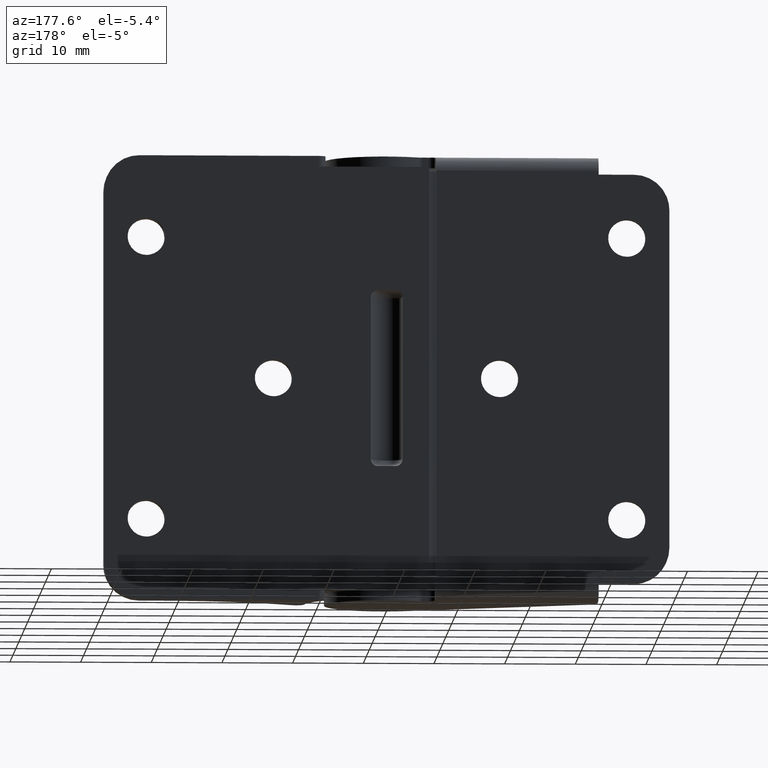
[diagram: clean part render]
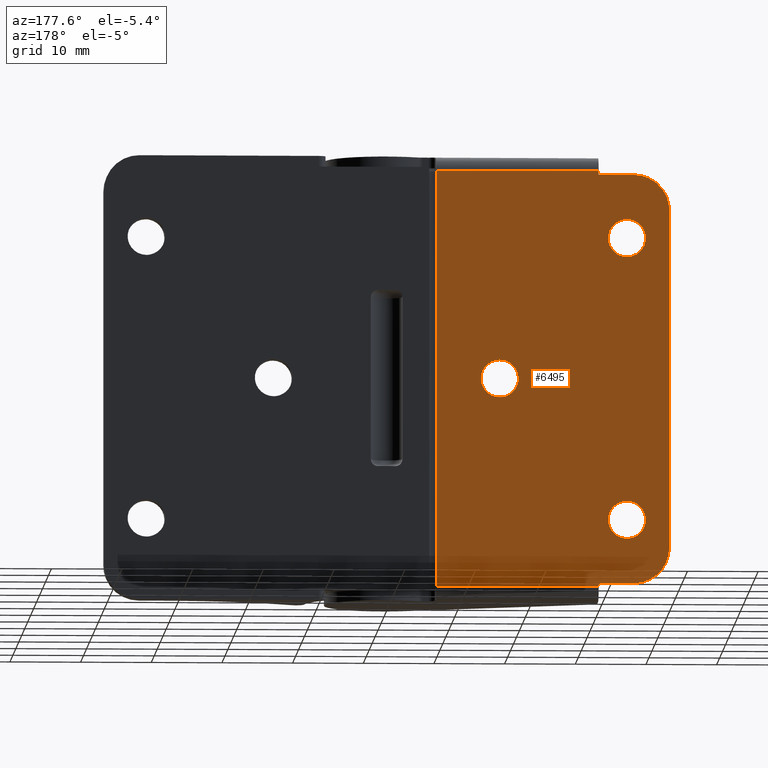
[diagram: same view with one face highlighted and labeled with its STEP entity id]
A machine part, auxiliary view. The second image highlights one B-rep face of the part: STEP entity #6495.
In plain terms, the highlighted face is a freeform B-spline surface patch.
Its self-contained STEP definition (entity closure, byte-faithful):
#4471=CARTESIAN_POINT('',(-34.000007999999902,9.0,54.149999999999999));
#4472=VERTEX_POINT('',#4471);
#4473=CARTESIAN_POINT('',(-36.641838934385788,9.0,51.707916603766350));
#4474=VERTEX_POINT('',#4473);
#4475=CARTESIAN_POINT('',(-34.000007999999902,9.0,54.149999999999999));
#4476=CARTESIAN_POINT('',(-36.449642802731248,9.000000000000002,54.149999999999999));
#4477=CARTESIAN_POINT('',(-36.641838934385788,9.0,51.707916603766350));
#4485=(BOUNDED_CURVE()B_SPLINE_CURVE(2,(#4475,#4476,#4477),.UNSPECIFIED.,.F.,.U.)B_SPLINE_CURVE_WITH_KNOTS((3,3),(0.0,0.236331300621403),.UNSPECIFIED.)CURVE()GEOMETRIC_REPRESENTATION_ITEM()RATIONAL_B_SPLINE_CURVE((1.0,0.723120658618510,0.969723356148101))REPRESENTATION_ITEM(''));
#4486=EDGE_CURVE('',#4472,#4474,#4485,.T.);
#4488=CARTESIAN_POINT('',(-31.358177065614001,9.0,51.292083396233650));
#4489=VERTEX_POINT('',#4488);
#4490=CARTESIAN_POINT('',(-31.358177065614001,9.000000000000002,51.292083396233650));
#4491=CARTESIAN_POINT('',(-31.350007999999892,9.0,51.395881216341706));
#4492=CARTESIAN_POINT('',(-31.350007999999900,9.0,51.500000000000000));
#4493=CARTESIAN_POINT('',(-31.350007999999892,9.000000000000002,54.149999999999984));
#4494=CARTESIAN_POINT('',(-34.000007999999902,9.0,54.149999999999999));
#4502=(BOUNDED_CURVE()B_SPLINE_CURVE(2,(#4490,#4491,#4492,#4493,#4494),.UNSPECIFIED.,.F.,.U.)B_SPLINE_CURVE_WITH_KNOTS((3,2,3),(0.736331300621403,0.750000000000000,1.0),.UNSPECIFIED.)CURVE()GEOMETRIC_REPRESENTATION_ITEM()RATIONAL_B_SPLINE_CURVE((0.969723356148100,0.983986122568038,1.0,0.707106781186548,1.0))REPRESENTATION_ITEM(''));
#4503=EDGE_CURVE('',#4489,#4472,#4502,.T.);
#4570=CARTESIAN_POINT('',(-34.000007999999902,9.0,48.849999999999987));
#4571=VERTEX_POINT('',#4570);
#4572=CARTESIAN_POINT('',(-36.641838934385788,9.000000000000002,51.707916603766343));
#4573=CARTESIAN_POINT('',(-36.650007999999907,9.0,51.604118783658294));
#4574=CARTESIAN_POINT('',(-36.650007999999893,9.0,51.500000000000000));
#4575=CARTESIAN_POINT('',(-36.650007999999893,9.000000000000002,48.849999999999980));
#4576=CARTESIAN_POINT('',(-34.000007999999902,9.0,48.849999999999987));
#4584=(BOUNDED_CURVE()B_SPLINE_CURVE(2,(#4572,#4573,#4574,#4575,#4576),.UNSPECIFIED.,.F.,.U.)B_SPLINE_CURVE_WITH_KNOTS((3,2,3),(0.236331300621403,0.250000000000000,0.500000000000000),.UNSPECIFIED.)CURVE()GEOMETRIC_REPRESENTATION_ITEM()RATIONAL_B_SPLINE_CURVE((0.969723356148100,0.983986122568038,1.0,0.707106781186548,1.0))REPRESENTATION_ITEM(''));
#4585=EDGE_CURVE('',#4474,#4571,#4584,.T.);
#4619=CARTESIAN_POINT('',(-34.000007999999902,9.0,48.849999999999987));
#4620=CARTESIAN_POINT('',(-31.550373197268531,9.0,48.850000000000001));
#4621=CARTESIAN_POINT('',(-31.358177065613997,9.0,51.292083396233650));
#4629=(BOUNDED_CURVE()B_SPLINE_CURVE(2,(#4619,#4620,#4621),.UNSPECIFIED.,.F.,.U.)B_SPLINE_CURVE_WITH_KNOTS((3,3),(0.500000000000000,0.736331300621404),.UNSPECIFIED.)CURVE()GEOMETRIC_REPRESENTATION_ITEM()RATIONAL_B_SPLINE_CURVE((1.0,0.723120658618509,0.969723356148102))REPRESENTATION_ITEM(''));
#4630=EDGE_CURVE('',#4571,#4489,#4629,.T.);
#4653=CARTESIAN_POINT('',(-16.000014999999799,9.0,34.149999999999999));
#4654=VERTEX_POINT('',#4653);
#4655=CARTESIAN_POINT('',(-18.641845934385699,9.0,31.707916603766350));
#4656=VERTEX_POINT('',#4655);
#4657=CARTESIAN_POINT('',(-16.000014999999799,9.0,34.149999999999999));
#4658=CARTESIAN_POINT('',(-18.449649802731162,9.0,34.150000000000013));
#4659=CARTESIAN_POINT('',(-18.641845934385696,9.0,31.707916603766350));
#4667=(BOUNDED_CURVE()B_SPLINE_CURVE(2,(#4657,#4658,#4659),.UNSPECIFIED.,.F.,.U.)B_SPLINE_CURVE_WITH_KNOTS((3,3),(0.0,0.236331300621404),.UNSPECIFIED.)CURVE()GEOMETRIC_REPRESENTATION_ITEM()RATIONAL_B_SPLINE_CURVE((1.0,0.723120658618510,0.969723356148101))REPRESENTATION_ITEM(''));
#4668=EDGE_CURVE('',#4654,#4656,#4667,.T.);
#4670=CARTESIAN_POINT('',(-13.358184065613900,9.0,31.292083396233650));
#4671=VERTEX_POINT('',#4670);
#4672=CARTESIAN_POINT('',(-13.358184065613905,9.0,31.292083396233654));
#4673=CARTESIAN_POINT('',(-13.350014999999793,9.0,31.395881216341714));
#4674=CARTESIAN_POINT('',(-13.350014999999800,9.0,31.500000000000000));
#4675=CARTESIAN_POINT('',(-13.350014999999800,9.000000000000002,34.149999999999999));
#4676=CARTESIAN_POINT('',(-16.000014999999799,9.0,34.149999999999999));
#4684=(BOUNDED_CURVE()B_SPLINE_CURVE(2,(#4672,#4673,#4674,#4675,#4676),.UNSPECIFIED.,.F.,.U.)B_SPLINE_CURVE_WITH_KNOTS((3,2,3),(0.736331300621404,0.750000000000000,1.0),.UNSPECIFIED.)CURVE()GEOMETRIC_REPRESENTATION_ITEM()RATIONAL_B_SPLINE_CURVE((0.969723356148101,0.983986122568038,1.0,0.707106781186548,1.0))REPRESENTATION_ITEM(''));
#4685=EDGE_CURVE('',#4671,#4654,#4684,.T.);
#4752=CARTESIAN_POINT('',(-16.000014999999799,9.0,28.850000000000001));
#4753=VERTEX_POINT('',#4752);
#4754=CARTESIAN_POINT('',(-18.641845934385696,9.0,31.707916603766350));
#4755=CARTESIAN_POINT('',(-18.650014999999794,9.0,31.604118783658290));
#4756=CARTESIAN_POINT('',(-18.650014999999801,9.0,31.500000000000000));
#4757=CARTESIAN_POINT('',(-18.650014999999801,9.000000000000002,28.850000000000005));
#4758=CARTESIAN_POINT('',(-16.000014999999799,9.0,28.850000000000001));
#4766=(BOUNDED_CURVE()B_SPLINE_CURVE(2,(#4754,#4755,#4756,#4757,#4758),.UNSPECIFIED.,.F.,.U.)B_SPLINE_CURVE_WITH_KNOTS((3,2,3),(0.236331300621404,0.250000000000000,0.500000000000000),.UNSPECIFIED.)CURVE()GEOMETRIC_REPRESENTATION_ITEM()RATIONAL_B_SPLINE_CURVE((0.969723356148101,0.983986122568038,1.0,0.707106781186548,1.0))REPRESENTATION_ITEM(''));
#4767=EDGE_CURVE('',#4656,#4753,#4766,.T.);
#4801=CARTESIAN_POINT('',(-16.000014999999799,9.0,28.850000000000001));
#4802=CARTESIAN_POINT('',(-13.550380197268426,9.0,28.850000000000001));
#4803=CARTESIAN_POINT('',(-13.358184065613900,9.0,31.292083396233654));
#4811=(BOUNDED_CURVE()B_SPLINE_CURVE(2,(#4801,#4802,#4803),.UNSPECIFIED.,.F.,.U.)B_SPLINE_CURVE_WITH_KNOTS((3,3),(0.500000000000000,0.736331300621404),.UNSPECIFIED.)CURVE()GEOMETRIC_REPRESENTATION_ITEM()RATIONAL_B_SPLINE_CURVE((1.0,0.723120658618509,0.969723356148102))REPRESENTATION_ITEM(''));
#4812=EDGE_CURVE('',#4753,#4671,#4811,.T.);
#4835=CARTESIAN_POINT('',(-34.000007999999902,9.0,14.150000000000000));
#4836=VERTEX_POINT('',#4835);
#4837=CARTESIAN_POINT('',(-36.641838934385788,8.999999999999998,11.707916603766350));
#4838=VERTEX_POINT('',#4837);
#4839=CARTESIAN_POINT('',(-34.000007999999902,9.0,14.150000000000000));
#4840=CARTESIAN_POINT('',(-36.449642802731248,9.0,14.150000000000000));
#4841=CARTESIAN_POINT('',(-36.641838934385781,8.999999999999998,11.707916603766348));
#4849=(BOUNDED_CURVE()B_SPLINE_CURVE(2,(#4839,#4840,#4841),.UNSPECIFIED.,.F.,.U.)B_SPLINE_CURVE_WITH_KNOTS((3,3),(0.0,0.236331300621403),.UNSPECIFIED.)CURVE()GEOMETRIC_REPRESENTATION_ITEM()RATIONAL_B_SPLINE_CURVE((1.0,0.723120658618510,0.969723356148100))REPRESENTATION_ITEM(''));
#4850=EDGE_CURVE('',#4836,#4838,#4849,.T.);
#4852=CARTESIAN_POINT('',(-31.358177065614001,9.0,11.292083396233650));
#4853=VERTEX_POINT('',#4852);
#4854=CARTESIAN_POINT('',(-31.358177065614001,9.000000000000002,11.292083396233645));
#4855=CARTESIAN_POINT('',(-31.350007999999892,9.0,11.395881216341710));
#4856=CARTESIAN_POINT('',(-31.350007999999900,9.0,11.500000000000000));
#4857=CARTESIAN_POINT('',(-31.350007999999892,9.000000000000002,14.150000000000004));
#4858=CARTESIAN_POINT('',(-34.000007999999902,9.0,14.150000000000000));
#4866=(BOUNDED_CURVE()B_SPLINE_CURVE(2,(#4854,#4855,#4856,#4857,#4858),.UNSPECIFIED.,.F.,.U.)B_SPLINE_CURVE_WITH_KNOTS((3,2,3),(0.736331300621403,0.750000000000000,1.0),.UNSPECIFIED.)CURVE()GEOMETRIC_REPRESENTATION_ITEM()RATIONAL_B_SPLINE_CURVE((0.969723356148100,0.983986122568038,1.0,0.707106781186548,1.0))REPRESENTATION_ITEM(''));
#4867=EDGE_CURVE('',#4853,#4836,#4866,.T.);
#4934=CARTESIAN_POINT('',(-34.000007999999902,9.0,8.850000000000000));
#4935=VERTEX_POINT('',#4934);
#4936=CARTESIAN_POINT('',(-36.641838934385788,8.999999999999998,11.707916603766357));
#4937=CARTESIAN_POINT('',(-36.650007999999893,9.0,11.604118783658299));
#4938=CARTESIAN_POINT('',(-36.650007999999893,9.0,11.500000000000000));
#4939=CARTESIAN_POINT('',(-36.650007999999893,9.000000000000002,8.850000000000000));
#4940=CARTESIAN_POINT('',(-34.000007999999902,9.0,8.850000000000000));
#4948=(BOUNDED_CURVE()B_SPLINE_CURVE(2,(#4936,#4937,#4938,#4939,#4940),.UNSPECIFIED.,.F.,.U.)B_SPLINE_CURVE_WITH_KNOTS((3,2,3),(0.236331300621403,0.250000000000000,0.500000000000000),.UNSPECIFIED.)CURVE()GEOMETRIC_REPRESENTATION_ITEM()RATIONAL_B_SPLINE_CURVE((0.969723356148100,0.983986122568037,1.0,0.707106781186548,1.0))REPRESENTATION_ITEM(''));
#4949=EDGE_CURVE('',#4838,#4935,#4948,.T.);
#4983=CARTESIAN_POINT('',(-34.000007999999902,9.0,8.850000000000000));
#4984=CARTESIAN_POINT('',(-31.550373197268531,9.0,8.850000000000000));
#4985=CARTESIAN_POINT('',(-31.358177065613997,9.0,11.292083396233647));
#4993=(BOUNDED_CURVE()B_SPLINE_CURVE(2,(#4983,#4984,#4985),.UNSPECIFIED.,.F.,.U.)B_SPLINE_CURVE_WITH_KNOTS((3,3),(0.500000000000000,0.736331300621404),.UNSPECIFIED.)CURVE()GEOMETRIC_REPRESENTATION_ITEM()RATIONAL_B_SPLINE_CURVE((1.0,0.723120658618509,0.969723356148102))REPRESENTATION_ITEM(''));
#4994=EDGE_CURVE('',#4935,#4853,#4993,.T.);
#5173=CARTESIAN_POINT('',(-30.000007999999902,9.0,2.0));
#5174=VERTEX_POINT('',#5173);
#5188=CARTESIAN_POINT('',(-7.000014999999790,9.0,2.0));
#5189=VERTEX_POINT('',#5188);
#5190=CARTESIAN_POINT('',(-7.000014999999790,9.0,2.0));
#5191=CARTESIAN_POINT('',(-30.000007999999902,9.0,2.0));
#5192=QUASI_UNIFORM_CURVE('',1,(#5190,#5191),.UNSPECIFIED.,.F.,.U.);
#5193=EDGE_CURVE('',#5189,#5174,#5192,.T.);
#5225=CARTESIAN_POINT('',(-7.000014999999790,9.0,61.0));
#5226=VERTEX_POINT('',#5225);
#5242=CARTESIAN_POINT('',(-30.000007999999902,9.0,61.0));
#5243=VERTEX_POINT('',#5242);
#5244=CARTESIAN_POINT('',(-30.000007999999902,9.0,61.0));
#5245=CARTESIAN_POINT('',(-7.000014999999790,9.0,61.0));
#5246=QUASI_UNIFORM_CURVE('',1,(#5244,#5245),.UNSPECIFIED.,.F.,.U.);
#5247=EDGE_CURVE('',#5243,#5226,#5246,.T.);
#5824=CARTESIAN_POINT('',(-35.000007999999902,9.0,60.500000000000000));
#5825=VERTEX_POINT('',#5824);
#5833=CARTESIAN_POINT('',(-40.000007999999902,9.0,55.500000000000000));
#5834=VERTEX_POINT('',#5833);
#5835=CARTESIAN_POINT('',(-35.000007999999902,9.0,60.500000000000000));
#5836=CARTESIAN_POINT('',(-40.000007999999895,9.000000000000002,60.500000000000000));
#5837=CARTESIAN_POINT('',(-40.000007999999902,9.0,55.500000000000000));
#5845=(BOUNDED_CURVE()B_SPLINE_CURVE(2,(#5835,#5836,#5837),.UNSPECIFIED.,.F.,.U.)CURVE()GEOMETRIC_REPRESENTATION_ITEM()QUASI_UNIFORM_CURVE()RATIONAL_B_SPLINE_CURVE((1.0,0.707106781186548,1.0))REPRESENTATION_ITEM(''));
#5846=EDGE_CURVE('',#5825,#5834,#5845,.T.);
#5876=CARTESIAN_POINT('',(-30.000007999999902,9.0,60.500000000000000));
#5877=VERTEX_POINT('',#5876);
#5885=CARTESIAN_POINT('',(-30.000007999999902,9.0,60.500000000000000));
#5886=CARTESIAN_POINT('',(-35.000007999999902,9.0,60.500000000000000));
#5887=QUASI_UNIFORM_CURVE('',1,(#5885,#5886),.UNSPECIFIED.,.F.,.U.);
#5888=EDGE_CURVE('',#5877,#5825,#5887,.T.);
#5904=CARTESIAN_POINT('',(-35.000007912733452,9.0,2.499999999999915));
#5905=VERTEX_POINT('',#5904);
#5913=CARTESIAN_POINT('',(-30.000007999999902,9.0,2.499999999999800));
#5914=VERTEX_POINT('',#5913);
#5915=CARTESIAN_POINT('',(-35.000007912733452,9.0,2.499999999999915));
#5916=CARTESIAN_POINT('',(-30.000007999999902,9.0,2.499999999999800));
#5917=QUASI_UNIFORM_CURVE('',1,(#5915,#5916),.UNSPECIFIED.,.F.,.U.);
#5918=EDGE_CURVE('',#5905,#5914,#5917,.T.);
#5949=CARTESIAN_POINT('',(-40.000007999999902,9.0,7.499999999999920));
#5950=VERTEX_POINT('',#5949);
#5958=CARTESIAN_POINT('',(-40.000007999999902,9.0,7.499999999999920));
#5959=CARTESIAN_POINT('',(-40.000007999999887,9.0,5.428932162574696));
#5960=CARTESIAN_POINT('',(-38.535541875079289,9.0,3.964466063213836));
#5961=CARTESIAN_POINT('',(-37.071075750158677,9.0,2.499999963852976));
#5962=CARTESIAN_POINT('',(-35.000007912733452,9.0,2.499999999999921));
#5970=(BOUNDED_CURVE()B_SPLINE_CURVE(2,(#5958,#5959,#5960,#5961,#5962),.UNSPECIFIED.,.F.,.U.)B_SPLINE_CURVE_WITH_KNOTS((3,2,3),(0.0,0.500000000000000,1.0),.UNSPECIFIED.)CURVE()GEOMETRIC_REPRESENTATION_ITEM()RATIONAL_B_SPLINE_CURVE((1.0,0.923879530841516,1.0,0.923879530841516,1.0))REPRESENTATION_ITEM(''));
#5971=EDGE_CURVE('',#5950,#5905,#5970,.T.);
#5997=CARTESIAN_POINT('',(-7.000014999999790,9.0,2.0));
#5998=CARTESIAN_POINT('',(-7.000014999999790,9.0,61.0));
#5999=QUASI_UNIFORM_CURVE('',1,(#5997,#5998),.UNSPECIFIED.,.F.,.U.);
#6000=EDGE_CURVE('',#5189,#5226,#5999,.T.);
#6100=CARTESIAN_POINT('',(-40.000007999999902,9.0,7.499999999999920));
#6101=CARTESIAN_POINT('',(-40.000007999999902,9.0,55.500000000000000));
#6102=QUASI_UNIFORM_CURVE('',1,(#6100,#6101),.UNSPECIFIED.,.F.,.U.);
#6103=EDGE_CURVE('',#5950,#5834,#6102,.T.);
#6367=CARTESIAN_POINT('',(-30.000007999999902,9.0,2.499999999999800));
#6368=CARTESIAN_POINT('',(-30.000007999999902,9.0,2.0));
#6369=QUASI_UNIFORM_CURVE('',1,(#6367,#6368),.UNSPECIFIED.,.F.,.U.);
#6370=EDGE_CURVE('',#5914,#5174,#6369,.T.);
#6393=CARTESIAN_POINT('',(-30.000007999999902,9.0,61.0));
#6394=CARTESIAN_POINT('',(-30.000007999999902,9.0,60.500000000000000));
#6395=QUASI_UNIFORM_CURVE('',1,(#6393,#6394),.UNSPECIFIED.,.F.,.U.);
#6396=EDGE_CURVE('',#5243,#5877,#6395,.T.);
#6460=CARTESIAN_POINT('',(-41.648357276609197,9.0,-0.947049885646551));
#6461=CARTESIAN_POINT('',(-41.648357276609197,9.0,63.947051468149873));
#6462=CARTESIAN_POINT('',(-5.351664543218783,9.0,-0.947049885646551));
#6463=CARTESIAN_POINT('',(-5.351664543218783,9.0,63.947051468149873));
#6464=B_SPLINE_SURFACE_WITH_KNOTS('',1,1,((#6460,#6462),(#6461,#6463)),.UNSPECIFIED.,.F.,.F.,.U.,(2,2),(2,2),(0.0,64.894101353796430),(0.0,36.296692733390422),.UNSPECIFIED.);
#6465=ORIENTED_EDGE('',*,*,#6396,.F.);
#6466=ORIENTED_EDGE('',*,*,#5247,.T.);
#6467=ORIENTED_EDGE('',*,*,#6000,.F.);
#6468=ORIENTED_EDGE('',*,*,#5193,.T.);
#6469=ORIENTED_EDGE('',*,*,#6370,.F.);
#6470=ORIENTED_EDGE('',*,*,#5918,.F.);
#6471=ORIENTED_EDGE('',*,*,#5971,.F.);
#6472=ORIENTED_EDGE('',*,*,#6103,.T.);
#6473=ORIENTED_EDGE('',*,*,#5846,.F.);
#6474=ORIENTED_EDGE('',*,*,#5888,.F.);
#6475=EDGE_LOOP('',(#6465,#6466,#6467,#6468,#6469,#6470,#6471,#6472,#6473,#6474));
#6476=FACE_OUTER_BOUND('',#6475,.T.);
#6477=ORIENTED_EDGE('',*,*,#4994,.T.);
#6478=ORIENTED_EDGE('',*,*,#4867,.T.);
#6479=ORIENTED_EDGE('',*,*,#4850,.T.);
#6480=ORIENTED_EDGE('',*,*,#4949,.T.);
#6481=EDGE_LOOP('',(#6477,#6478,#6479,#6480));
#6482=FACE_BOUND('',#6481,.T.);
#6483=ORIENTED_EDGE('',*,*,#4812,.T.);
#6484=ORIENTED_EDGE('',*,*,#4685,.T.);
#6485=ORIENTED_EDGE('',*,*,#4668,.T.);
#6486=ORIENTED_EDGE('',*,*,#4767,.T.);
#6487=EDGE_LOOP('',(#6483,#6484,#6485,#6486));
#6488=FACE_BOUND('',#6487,.T.);
#6489=ORIENTED_EDGE('',*,*,#4630,.T.);
#6490=ORIENTED_EDGE('',*,*,#4503,.T.);
#6491=ORIENTED_EDGE('',*,*,#4486,.T.);
#6492=ORIENTED_EDGE('',*,*,#4585,.T.);
#6493=EDGE_LOOP('',(#6489,#6490,#6491,#6492));
#6494=FACE_BOUND('',#6493,.T.);
#6495=ADVANCED_FACE('',(#6476,#6482,#6488,#6494),#6464,.T.);